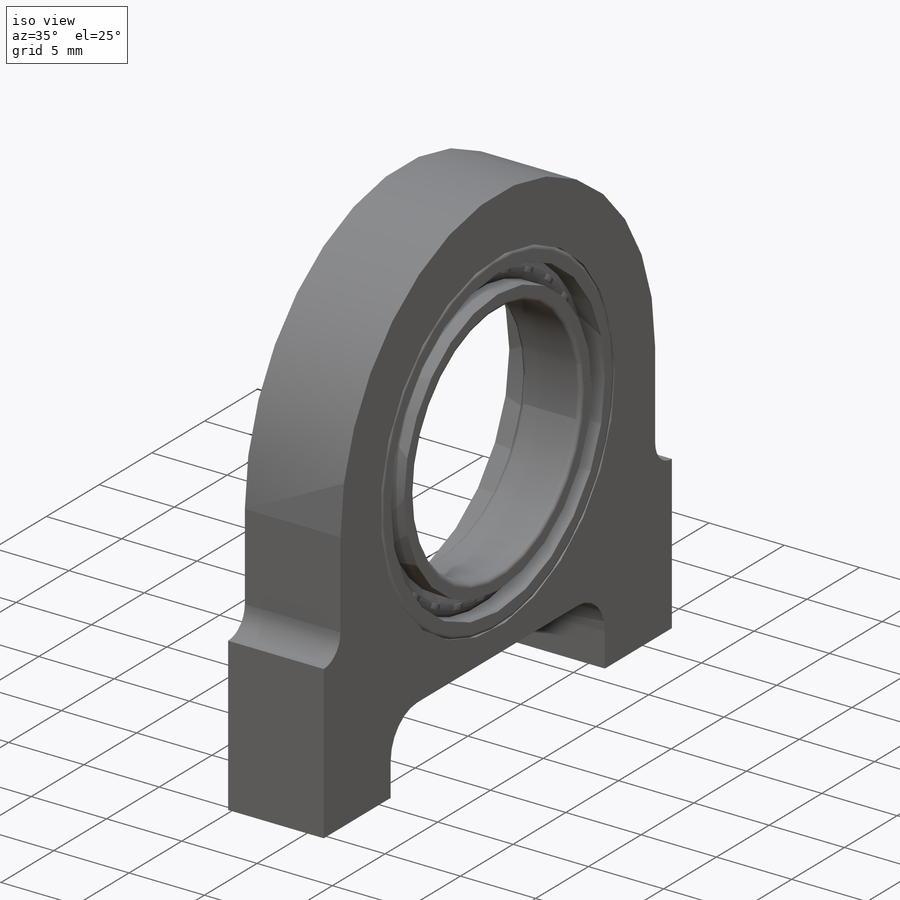
[diagram: iso view]
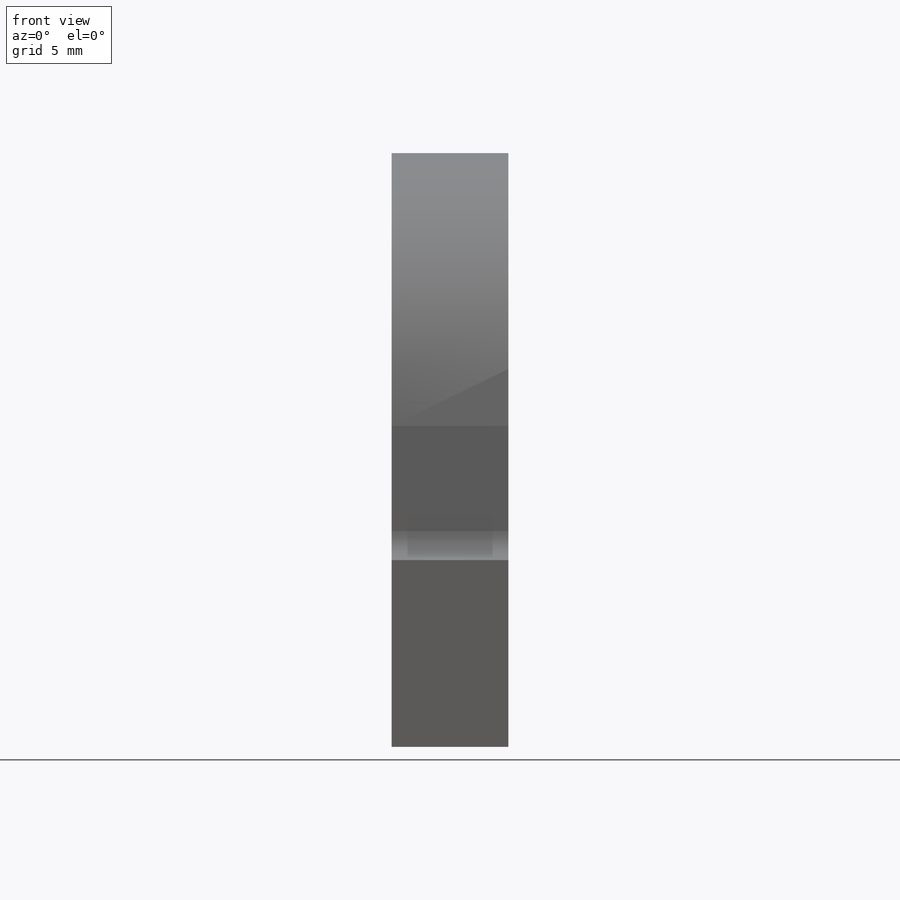
[diagram: front view]
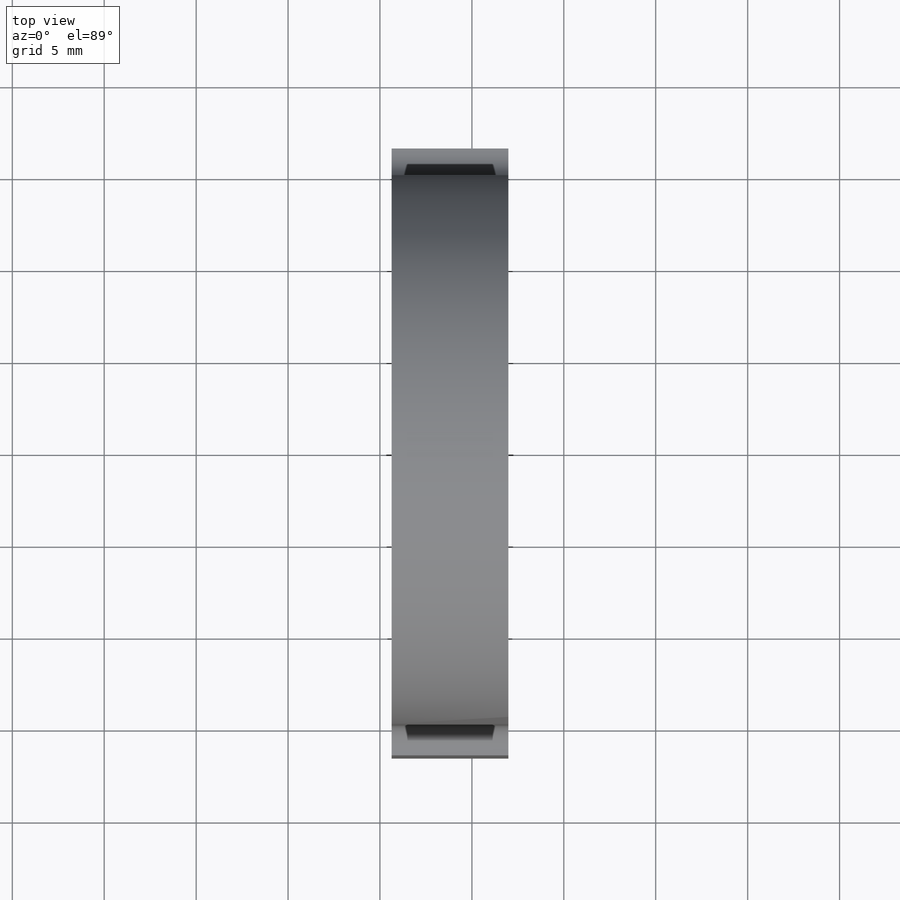
[diagram: top view]
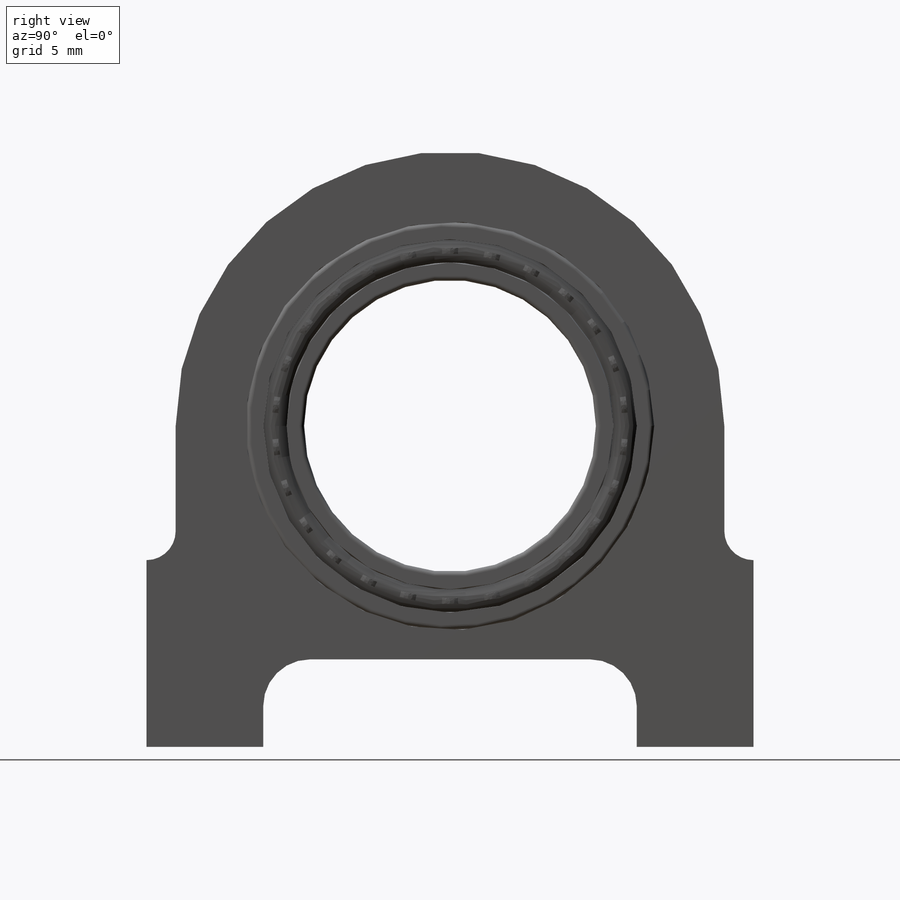
[diagram: right view]
SOLIDWORKS PART (.sldprt)
format: sldprt  version: not decoded by parser v0  size: 1,096,192 bytes
history: native  units: mm
features: sketch x13, revolve x6, plane x3, cut_revolve x3, pattern_circular x2, extrude x2, thread x2, material x1, hole x1 (+10 scaffold rows collapsed)
feature tree (43):
  scaffold x10  (default folders/planes/origin — collapsed)
  material  "6061 Alloy"
  plane  "Plane1"
  plane  "Plane2"
  plane  "Plane3"
  sketch  "Clipboard"  dims[c1.BallCLRad=22.225mm c2.BallCLRad=9.525mm c2.D2=20.0mm c2.Count=26.0deg c2.D3=~22.36068mm c2.Show_count=26.0deg c2.D1=20.0mm c2.Max_count=26.0deg c3.D1=20.0mm c3.Min_count=2.0deg]
  sketch  "CagSpiSke"  dims[Thickness=0.1905mm OD=19.3675mm ID=18.7325mm]
  revolve  "CageSpine"  Angle=360deg
  sketch  "CagBalSke"  dims[CageWallOD=2.0955mm BallCLRad=9.525mm]
  revolve  "CageBall"  Angle=360deg
  pattern_circular  "CageBalls"  Count=26 Angle=13.846154deg
  sketch  "CagTrmODSke"  dims[Width=2.1463mm ID=19.3675mm OD=21.1963mm]
  cut_revolve  "CageTrimOD"  Angle=360deg
  sketch  "CagTrmIDSke"  dims[ID=17.0053mm OD=18.7325mm Width=2.1463mm D1=360.0deg]
  sketch  "BalSimSke"  dims[Ball_diameter=1.905mm BallCLRad=9.525mm]
  revolve  "BallsSimplified"  Angle=360deg
  sketch  "BalDetSke"  dims[Ball_diameter=1.905mm BallCLRad=9.525mm]
  revolve  "BallDetailed"  Angle=360deg
  sketch  "InnRacSke"  dims[Fillet_radius=0.254mm Ball_diameter=1.8542mm ID=15.875mm OD=17.78mm Width=~3.96748mm BallCLRad=9.525mm Skew=0.0254mm]
  revolve  "InnerRace"  Angle=360deg
  sketch  "OutRacSke"  dims[Fillet_radius=0.254mm Ball_diameter=1.8542mm OD=22.225mm ID=20.32mm Width=~3.96748mm BallCLRad=9.525mm]
  revolve  "OuterRace"  Angle=360deg
  pattern_circular  "BallsDetailed"  Count=255 Angle=13.846154deg SubType=255 LOCATION_METHOD=255
  cut_revolve  "CimBearingSettings6.0"  LOCATION_METHOD=255 CopiedFlag=1  [1 undecoded]
  cut_revolve  "SolidworksEditDefinition"  CopiedFlag=0  [1 undecoded]
  sketch  "Sketch3"  dims[c1.D1=29.845mm c1.D6=~1.58496mm c1.D9=2.54mm c1.D10=22.225mm c1.D2=32.385mm c1.D3=33.02mm c1.D4=10.16mm c1.D5=10.16mm c1.D7=4.7625mm c1.D8=20.32mm c2.D9=10.16mm]
  extrude  "Boss-Extrude1"  Depth=6.35mm
  sketch  "Sketch4"  dims[D1=~10.266983mm]
  extrude  "Boss-Extrude2"  [1 undecoded]
  hole  "#6-32 Tapped Hole1"  Diameter=2.7051mm Depth=7.9375mm
  sketch  "Sketch6"  dims[D1=3.175mm D2=19.05mm D3=19.05mm]
  sketch  "Sketch5"  dims[hole-wizard template sketch: 47 standard entries collapsed; hole parameters kept: c15.Tap Drill Depth=7.9375mm c15.D3=~14.816244mm c15.Drill Angle=118.0deg]
  thread  "Hole Thread1"  Diameter=7.0104mm  [1 undecoded]
  thread  "Hole Thread2"  Diameter=7.0104mm  [1 undecoded]
decode coverage: 28 of 29 modeling features carry decoded parameters
note: ~ marks probable driven/reference dimensions
note: 5 parameter values undecoded
summary: no parameter record found for 3 features
note: suppression state not decoded; provenance and decode notes live in map.json
